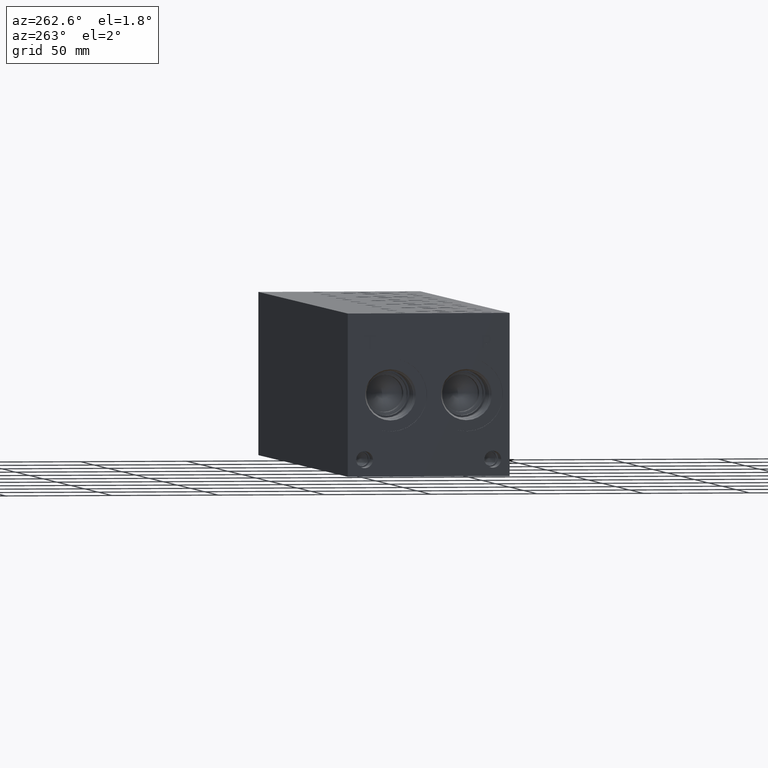
[diagram: clean part render]
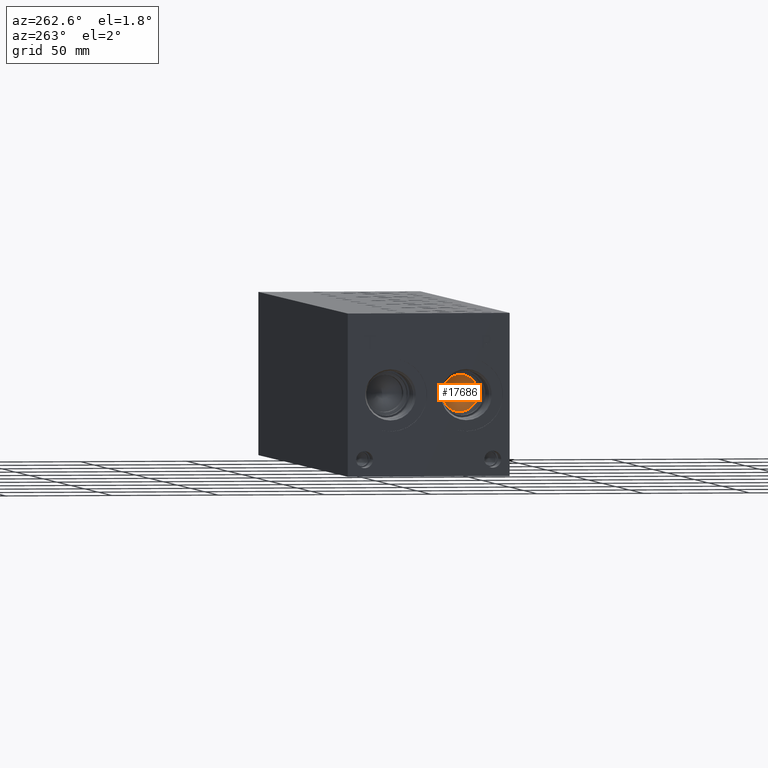
[diagram: same view with one face highlighted and labeled with its STEP entity id]
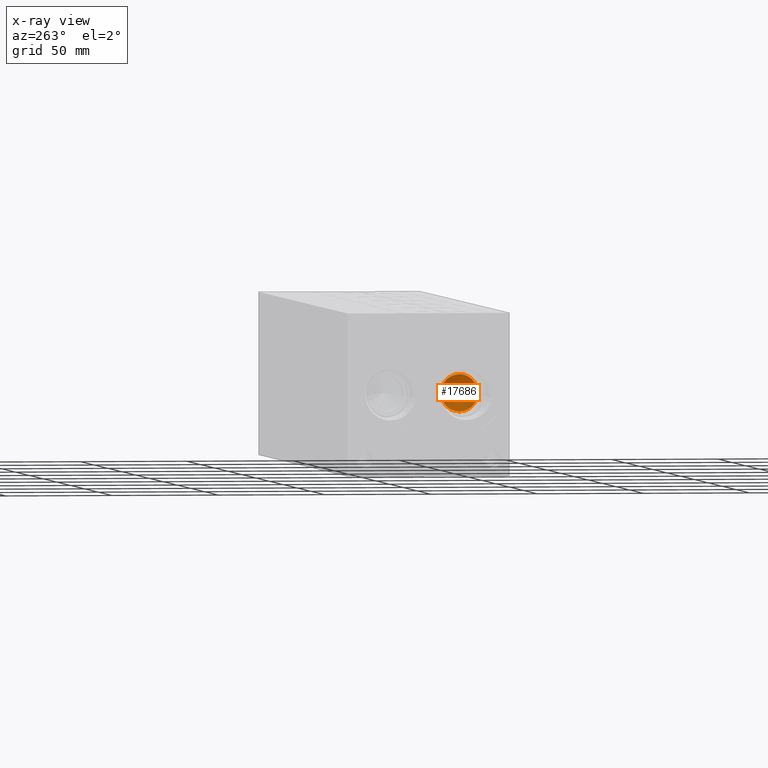
[diagram: x-ray of the same camera — body ghosted, the highlighted face saturated]
A machine part, auxiliary view. The second image highlights one B-rep face of the part: STEP entity #17686.
The next image is the same camera in x-ray: the body ghosted, the highlighted face saturated — about 0% of this face is hidden behind the body in this view.
In plain terms, the highlighted conical surface has half-angle 60 deg.
Its self-contained STEP definition (entity closure, byte-faithful):
#81=CONICAL_SURFACE('',#18677,8.7376,1.04719755223275);
#503=CIRCLE('',#18676,8.7376);
#2190=FACE_OUTER_BOUND('',#3320,.T.);
#3320=EDGE_LOOP('',(#15363,#15364,#15365));
#5019=LINE('',#30144,#6608);
#6608=VECTOR('',#22066,8.7376);
#8581=VERTEX_POINT('',#30139);
#8582=VERTEX_POINT('',#30143);
#10895=EDGE_CURVE('',#8581,#8581,#503,.T.);
#10896=EDGE_CURVE('',#8581,#8582,#5019,.T.);
#15363=ORIENTED_EDGE('',*,*,#10895,.F.);
#15364=ORIENTED_EDGE('',*,*,#10896,.T.);
#15365=ORIENTED_EDGE('',*,*,#10896,.F.);
#17686=ADVANCED_FACE('',(#2190),#81,.F.);
#18676=AXIS2_PLACEMENT_3D('',#30141,#22062,#22063);
#18677=AXIS2_PLACEMENT_3D('',#30142,#22064,#22065);
#22062=DIRECTION('center_axis',(1.,0.,0.));
#22063=DIRECTION('ref_axis',(0.,0.,-1.));
#22064=DIRECTION('center_axis',(-1.,0.,0.));
#22065=DIRECTION('ref_axis',(0.,0.,1.));
#22066=DIRECTION('',(0.499999999102669,-1.06057523935937E-16,0.866025404302513));
#30139=CARTESIAN_POINT('',(26.483421,20.2438,29.3624));
#30141=CARTESIAN_POINT('Origin',(26.483421,20.2438,38.1));
#30142=CARTESIAN_POINT('Origin',(26.483421,20.2438,38.1));
#30143=CARTESIAN_POINT('',(31.5280767,20.2438,38.1));
#30144=CARTESIAN_POINT('',(26.483421,20.2438,29.3624));